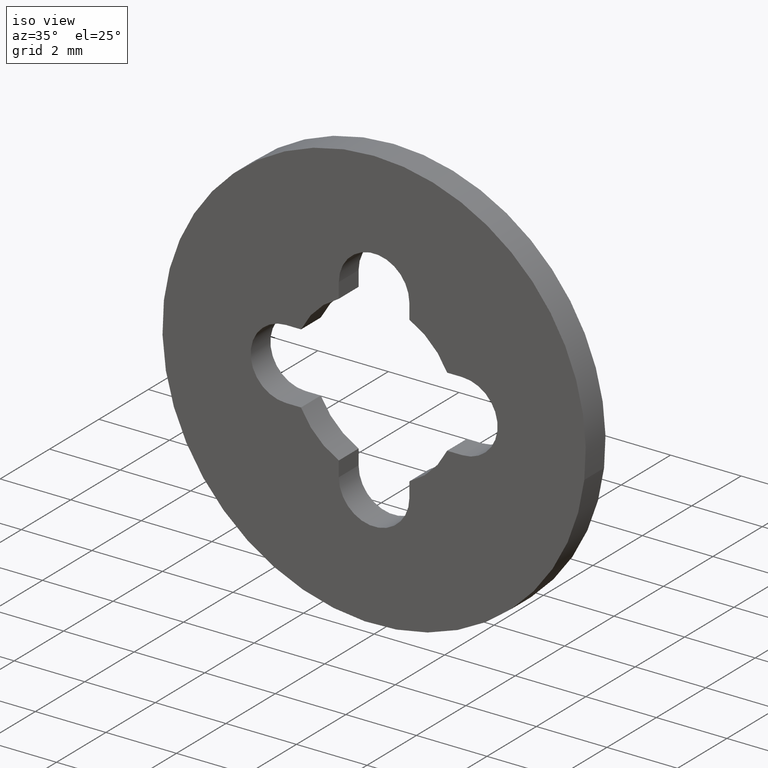
[diagram: clean part render]
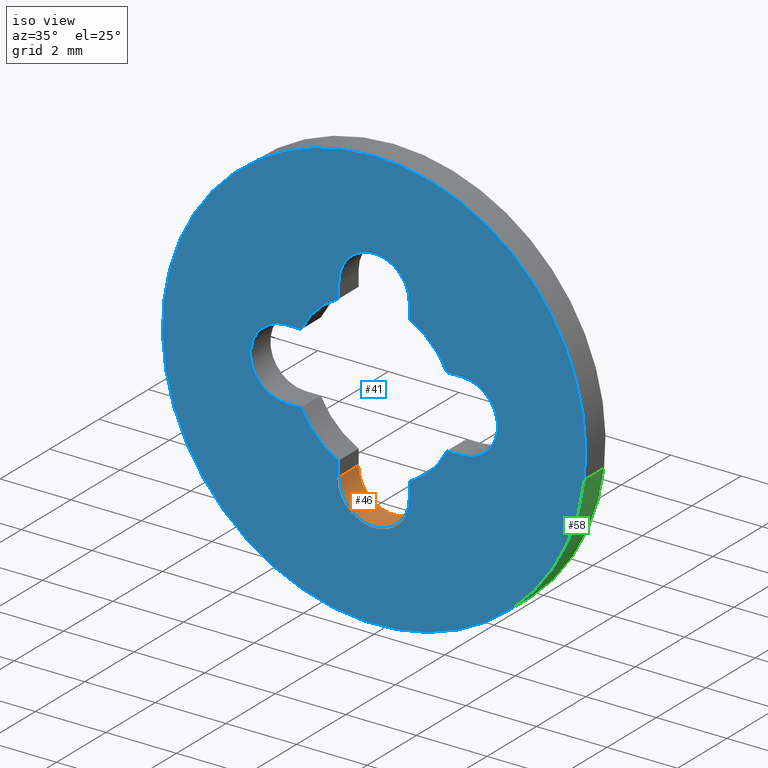
[diagram: same view with three faces highlighted in distinct colors, each labeled with its STEP entity id]
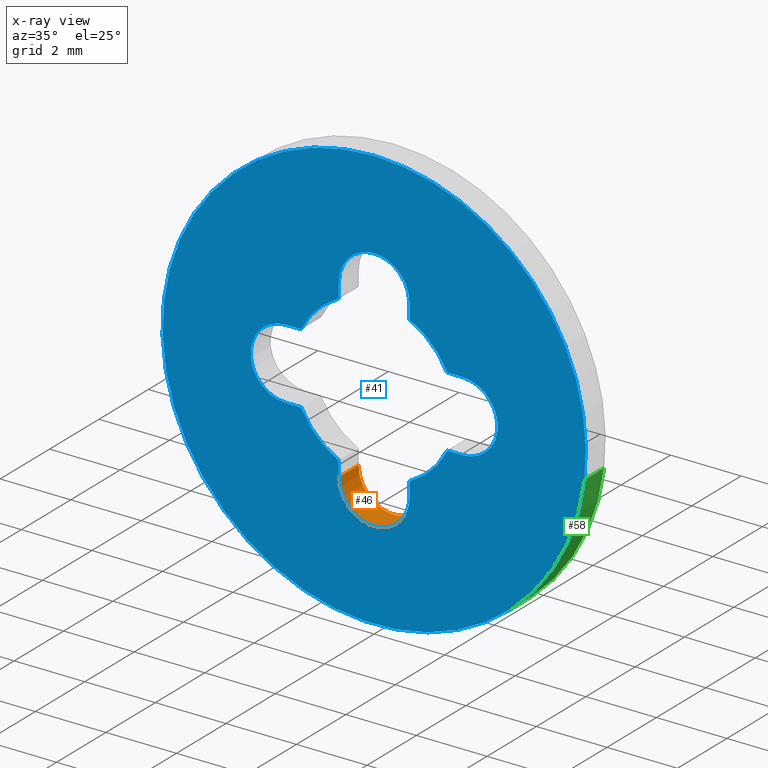
[diagram: x-ray of the same camera — body ghosted, the three highlighted faces saturated]
A machine part, iso view with three faces highlighted in distinct colors.
The next image is the same camera in x-ray (body ghosted, the three faces saturated) — at least one of them is partly hidden behind the body in this view.
Their STEP definitions:

[orange] entity #46 — the highlighted cylindrical surface (partial cylindrical patch) has radius 1 mm, axis along (0, -1, -0).
#46=ADVANCED_FACE('',(#123),#122,.F.);
#122=CYLINDRICAL_SURFACE('',#297,1.00000000000E+00);
#123=FACE_OUTER_BOUND('',#298,.T.);
#294=CARTESIAN_POINT('',(3.70797142990E-17,-2.05000000000E-02,-2.50000000000E+00));
#295=DIRECTION('',(0.00000000000E+00,-1.00000000000E+00,-0.00000000000E+00));
#296=DIRECTION('',(8.72653549838E-03,0.00000000000E+00,9.99961923064E-01));
#297=AXIS2_PLACEMENT_3D('',#294,#295,#296);
#298=EDGE_LOOP('',(#418,#419,#420,#421));
#418=ORIENTED_EDGE('',*,*,#503,.T.);
#419=ORIENTED_EDGE('',*,*,#518,.F.);
#420=ORIENTED_EDGE('',*,*,#491,.F.);
#421=ORIENTED_EDGE('',*,*,#519,.T.);
#491=EDGE_CURVE('',#631,#638,#639,.T.);
#503=EDGE_CURVE('',#722,#715,#723,.T.);
#518=EDGE_CURVE('',#638,#715,#822,.T.);
#519=EDGE_CURVE('',#631,#722,#828,.T.);
#631=VERTEX_POINT('',#972);
#638=VERTEX_POINT('',#976);
#639=CIRCLE('',#980,1.00000000000E+00);
#715=VERTEX_POINT('',#1027);
#722=VERTEX_POINT('',#1031);
#723=CIRCLE('',#1035,1.00000000000E+00);
#822=LINE('',#1092,#1093);
#828=LINE('',#1095,#1096);
#972=CARTESIAN_POINT('',(-1.00000000000E+00,8.00000000000E-01,-2.50000000000E+00));
#976=CARTESIAN_POINT('',(1.00000000000E+00,8.00000000000E-01,-2.49999982547E+00));
#977=CARTESIAN_POINT('',(-8.87137725789E-15,8.00000000000E-01,-2.50000000000E+00));
#978=DIRECTION('',(0.00000000000E+00,-1.00000000000E+00,-0.00000000000E+00));
#979=DIRECTION('',(-1.00000000000E+00,0.00000000000E+00,-9.20341277147E-15));
#980=AXIS2_PLACEMENT_3D('',#977,#978,#979);
#1027=CARTESIAN_POINT('',(1.00000000000E+00,0.00000000000E+00,-2.49999982547E+00));
#1031=CARTESIAN_POINT('',(-1.00000000000E+00,0.00000000000E+00,-2.50000000000E+00));
#1032=CARTESIAN_POINT('',(-8.87137725789E-15,0.00000000000E+00,-2.50000000000E+00));
#1033=DIRECTION('',(0.00000000000E+00,-1.00000000000E+00,-0.00000000000E+00));
#1034=DIRECTION('',(-1.00000000000E+00,0.00000000000E+00,-9.20341277147E-15));
#1035=AXIS2_PLACEMENT_3D('',#1032,#1033,#1034);
#1092=CARTESIAN_POINT('',(1.00000000000E+00,8.00000000000E-01,-2.49999982547E+00));
#1093=VECTOR('',#1094,8.00000000000E-01);
#1094=DIRECTION('',(0.00000000000E+00,-1.00000000000E+00,0.00000000000E+00));
#1095=CARTESIAN_POINT('',(-1.00000000000E+00,8.00000000000E-01,-2.50000000000E+00));
#1096=VECTOR('',#1097,8.00000000000E-01);
#1097=DIRECTION('',(0.00000000000E+00,-1.00000000000E+00,0.00000000000E+00));

[blue] entity #41 — the highlighted planar face has unit normal (-0, 1, 0).
#41=ADVANCED_FACE('',(#72,#73),#71,.F.);
#71=PLANE('',#271);
#72=FACE_OUTER_BOUND('',#272,.T.);
#73=FACE_BOUND('',#273,.T.);
#268=CARTESIAN_POINT('',(-1.24707658145E+01,0.00000000000E+00,7.80000000000E+00));
#269=DIRECTION('',(-0.00000000000E+00,1.00000000000E+00,0.00000000000E+00));
#270=DIRECTION('',(1.00000000000E+00,0.00000000000E+00,0.00000000000E+00));
#271=AXIS2_PLACEMENT_3D('',#268,#269,#270);
#272=EDGE_LOOP('',(#383,#384,#385));
#273=EDGE_LOOP('',(#386,#387,#388,#389,#390,#391,#392,#393,#394,#395,#396,#397,#398,#399,#400,#401));
#383=ORIENTED_EDGE('',*,*,#495,.T.);
#384=ORIENTED_EDGE('',*,*,#496,.T.);
#385=ORIENTED_EDGE('',*,*,#497,.T.);
#386=ORIENTED_EDGE('',*,*,#498,.F.);
#387=ORIENTED_EDGE('',*,*,#499,.F.);
#388=ORIENTED_EDGE('',*,*,#500,.F.);
#389=ORIENTED_EDGE('',*,*,#501,.F.);
#390=ORIENTED_EDGE('',*,*,#502,.F.);
#391=ORIENTED_EDGE('',*,*,#503,.F.);
#392=ORIENTED_EDGE('',*,*,#504,.F.);
#393=ORIENTED_EDGE('',*,*,#505,.F.);
#394=ORIENTED_EDGE('',*,*,#506,.F.);
#395=ORIENTED_EDGE('',*,*,#507,.F.);
#396=ORIENTED_EDGE('',*,*,#508,.F.);
#397=ORIENTED_EDGE('',*,*,#509,.F.);
#398=ORIENTED_EDGE('',*,*,#510,.F.);
#399=ORIENTED_EDGE('',*,*,#511,.F.);
#400=ORIENTED_EDGE('',*,*,#512,.F.);
#401=ORIENTED_EDGE('',*,*,#513,.F.);
#495=EDGE_CURVE('',#665,#666,#667,.T.);
#496=EDGE_CURVE('',#666,#673,#674,.T.);
#497=EDGE_CURVE('',#673,#665,#680,.T.);
#498=EDGE_CURVE('',#686,#687,#688,.T.);
#499=EDGE_CURVE('',#694,#686,#695,.T.);
#500=EDGE_CURVE('',#701,#694,#702,.T.);
#501=EDGE_CURVE('',#708,#701,#709,.T.);
#502=EDGE_CURVE('',#715,#708,#716,.T.);
#503=EDGE_CURVE('',#722,#715,#723,.T.);
#504=EDGE_CURVE('',#729,#722,#730,.T.);
#505=EDGE_CURVE('',#736,#729,#737,.T.);
#506=EDGE_CURVE('',#743,#736,#744,.T.);
#507=EDGE_CURVE('',#750,#743,#751,.T.);
#508=EDGE_CURVE('',#757,#750,#758,.T.);
#509=EDGE_CURVE('',#764,#757,#765,.T.);
#510=EDGE_CURVE('',#771,#764,#772,.T.);
#511=EDGE_CURVE('',#778,#771,#779,.T.);
#512=EDGE_CURVE('',#785,#778,#786,.T.);
#513=EDGE_CURVE('',#687,#785,#792,.T.);
#665=VERTEX_POINT('',#993);
#666=VERTEX_POINT('',#994);
#667=CIRCLE('',#998,6.00000000000E+00);
#673=VERTEX_POINT('',#999);
#674=CIRCLE('',#1003,6.00000000000E+00);
#680=CIRCLE('',#1007,6.00000000000E+00);
#686=VERTEX_POINT('',#1008);
#687=VERTEX_POINT('',#1009);
#688=LINE('',#1010,#1011);
#694=VERTEX_POINT('',#1013);
#695=CIRCLE('',#1017,1.00000000000E+00);
#701=VERTEX_POINT('',#1018);
#702=LINE('',#1019,#1020);
#708=VERTEX_POINT('',#1022);
#709=CIRCLE('',#1026,2.30000000000E+00);
#715=VERTEX_POINT('',#1027);
#716=LINE('',#1028,#1029);
#722=VERTEX_POINT('',#1031);
#723=CIRCLE('',#1035,1.00000000000E+00);
#729=VERTEX_POINT('',#1036);
#730=LINE('',#1037,#1038);
#736=VERTEX_POINT('',#1040);
#737=CIRCLE('',#1044,2.30000000000E+00);
#743=VERTEX_POINT('',#1045);
#744=LINE('',#1046,#1047);
#750=VERTEX_POINT('',#1049);
#751=CIRCLE('',#1053,1.00000000000E+00);
#757=VERTEX_POINT('',#1054);
#758=LINE('',#1055,#1056);
#764=VERTEX_POINT('',#1058);
#765=CIRCLE('',#1062,2.30000000000E+00);
#771=VERTEX_POINT('',#1063);
#772=LINE('',#1064,#1065);
#778=VERTEX_POINT('',#1067);
#779=CIRCLE('',#1071,1.00000000000E+00);
#785=VERTEX_POINT('',#1072);
#786=LINE('',#1073,#1074);
#792=CIRCLE('',#1079,2.30000000000E+00);
#993=CARTESIAN_POINT('',(1.60982338571E-14,8.00121012256E-13,6.00000000000E+00));
#994=CARTESIAN_POINT('',(-5.95793466626E+00,4.40724156108E-14,7.09235160270E-01));
#995=CARTESIAN_POINT('',(-8.28226376370E-13,6.59062363496E-14,-1.82343029564E-12));
#996=DIRECTION('',(1.82315375826E-14,-1.00000000000E+00,1.22369129318E-13));
#997=DIRECTION('',(1.40359945888E-13,1.22369129318E-13,1.00000000000E+00));
#998=AXIS2_PLACEMENT_3D('',#995,#996,#997);
#999=CARTESIAN_POINT('',(5.95805716504E+00,8.78683073894E-14,-7.08205350218E-01));
#1000=CARTESIAN_POINT('',(-8.28226376370E-13,6.59062363496E-14,-1.82343029564E-12));
#1001=DIRECTION('',(1.82315375826E-14,-1.00000000000E+00,1.22369129318E-13));
#1002=DIRECTION('',(1.40359945888E-13,1.22369129318E-13,1.00000000000E+00));
#1003=AXIS2_PLACEMENT_3D('',#1000,#1001,#1002);
#1004=CARTESIAN_POINT('',(-8.28226376370E-13,6.59062363496E-14,-1.82343029564E-12));
#1005=DIRECTION('',(1.82315375826E-14,-1.00000000000E+00,1.22369129318E-13));
#1006=DIRECTION('',(1.40359945888E-13,1.22369129318E-13,1.00000000000E+00));
#1007=AXIS2_PLACEMENT_3D('',#1004,#1005,#1006);
#1008=CARTESIAN_POINT('',(2.50000000000E+00,0.00000000000E+00,1.00000000000E+00));
#1009=CARTESIAN_POINT('',(2.07123151772E+00,0.00000000000E+00,1.00000000000E+00));
#1010=CARTESIAN_POINT('',(2.50000000000E+00,0.00000000000E+00,1.00000000000E+00));
#1011=VECTOR('',#1012,4.28768482279E-01);
#1012=DIRECTION('',(-1.00000000000E+00,0.00000000000E+00,0.00000000000E+00));
#1013=CARTESIAN_POINT('',(2.50000000000E+00,0.00000000000E+00,-1.00000000000E+00));
#1014=CARTESIAN_POINT('',(2.50000000000E+00,0.00000000000E+00,0.00000000000E+00));
#1015=DIRECTION('',(0.00000000000E+00,-1.00000000000E+00,-0.00000000000E+00));
#1016=DIRECTION('',(-1.22460635382E-16,0.00000000000E+00,-1.00000000000E+00));
#1017=AXIS2_PLACEMENT_3D('',#1014,#1015,#1016);
#1018=CARTESIAN_POINT('',(2.07123151772E+00,0.00000000000E+00,-1.00000000000E+00));
#1019=CARTESIAN_POINT('',(2.07123151772E+00,0.00000000000E+00,-1.00000000000E+00));
#1020=VECTOR('',#1021,4.28768482279E-01);
#1021=DIRECTION('',(1.00000000000E+00,0.00000000000E+00,0.00000000000E+00));
#1022=CARTESIAN_POINT('',(1.00000000000E+00,0.00000000000E+00,-2.07123151772E+00));
#1023=CARTESIAN_POINT('',(-4.21884749358E-15,0.00000000000E+00,4.44089209850E-15));
#1024=DIRECTION('',(0.00000000000E+00,-1.00000000000E+00,0.00000000000E+00));
#1025=DIRECTION('',(-4.34782608696E-01,-0.00000000000E+00,9.00535442487E-01));
#1026=AXIS2_PLACEMENT_3D('',#1023,#1024,#1025);
#1027=CARTESIAN_POINT('',(1.00000000000E+00,0.00000000000E+00,-2.49999982547E+00));
#1028=CARTESIAN_POINT('',(1.00000000000E+00,0.00000000000E+00,-2.49999982547E+00));
#1029=VECTOR('',#1030,4.28768307746E-01);
#1030=DIRECTION('',(9.32159121008E-15,0.00000000000E+00,1.00000000000E+00));
#1031=CARTESIAN_POINT('',(-1.00000000000E+00,0.00000000000E+00,-2.50000000000E+00));
#1032=CARTESIAN_POINT('',(-8.87137725789E-15,0.00000000000E+00,-2.50000000000E+00));
#1033=DIRECTION('',(0.00000000000E+00,-1.00000000000E+00,-0.00000000000E+00));
#1034=DIRECTION('',(-1.00000000000E+00,0.00000000000E+00,-9.20341277147E-15));
#1035=AXIS2_PLACEMENT_3D('',#1032,#1033,#1034);
#1036=CARTESIAN_POINT('',(-1.00000000000E+00,0.00000000000E+00,-2.07123151772E+00));
#1037=CARTESIAN_POINT('',(-1.00000000000E+00,0.00000000000E+00,-2.07123151772E+00));
#1038=VECTOR('',#1039,4.28768482279E-01);
#1039=DIRECTION('',(4.66079370784E-15,0.00000000000E+00,-1.00000000000E+00));
#1040=CARTESIAN_POINT('',(-2.07123151772E+00,0.00000000000E+00,-1.00000000000E+00));
#1041=CARTESIAN_POINT('',(3.33066907388E-15,0.00000000000E+00,2.88657986403E-15));
#1042=DIRECTION('',(0.00000000000E+00,-1.00000000000E+00,-0.00000000000E+00));
#1043=DIRECTION('',(9.00535442487E-01,-0.00000000000E+00,4.34782608696E-01));
#1044=AXIS2_PLACEMENT_3D('',#1041,#1042,#1043);
#1045=CARTESIAN_POINT('',(-2.50000000000E+00,0.00000000000E+00,-1.00000000000E+00));
#1046=CARTESIAN_POINT('',(-2.50000000000E+00,0.00000000000E+00,-1.00000000000E+00));
#1047=VECTOR('',#1048,4.28768482279E-01);
#1048=DIRECTION('',(1.00000000000E+00,0.00000000000E+00,0.00000000000E+00));
#1049=CARTESIAN_POINT('',(-2.50000000000E+00,0.00000000000E+00,1.00000000000E+00));
#1050=CARTESIAN_POINT('',(-2.50000000000E+00,0.00000000000E+00,0.00000000000E+00));
#1051=DIRECTION('',(0.00000000000E+00,-1.00000000000E+00,0.00000000000E+00));
#1052=DIRECTION('',(1.22460635382E-16,0.00000000000E+00,1.00000000000E+00));
#1053=AXIS2_PLACEMENT_3D('',#1050,#1051,#1052);
#1054=CARTESIAN_POINT('',(-2.07123151772E+00,0.00000000000E+00,1.00000000000E+00));
#1055=CARTESIAN_POINT('',(-2.07123151772E+00,0.00000000000E+00,1.00000000000E+00));
#1056=VECTOR('',#1057,4.28768482279E-01);
#1057=DIRECTION('',(-1.00000000000E+00,0.00000000000E+00,0.00000000000E+00));
#1058=CARTESIAN_POINT('',(-1.00000000000E+00,0.00000000000E+00,2.07123151772E+00));
#1059=CARTESIAN_POINT('',(-4.66293670343E-15,0.00000000000E+00,5.77315972805E-15));
#1060=DIRECTION('',(0.00000000000E+00,-1.00000000000E+00,0.00000000000E+00));
#1061=DIRECTION('',(4.34782608696E-01,-0.00000000000E+00,-9.00535442487E-01));
#1062=AXIS2_PLACEMENT_3D('',#1059,#1060,#1061);
#1063=CARTESIAN_POINT('',(-1.00000000000E+00,0.00000000000E+00,2.50000000000E+00));
#1064=CARTESIAN_POINT('',(-1.00000000000E+00,0.00000000000E+00,2.50000000000E+00));
#1065=VECTOR('',#1066,4.28768482279E-01);
#1066=DIRECTION('',(-4.19471433705E-14,0.00000000000E+00,-1.00000000000E+00));
#1067=CARTESIAN_POINT('',(1.00000000000E+00,0.00000000000E+00,2.50000000000E+00));
#1068=CARTESIAN_POINT('',(-5.49560397189E-15,0.00000000000E+00,2.50000000000E+00));
#1069=DIRECTION('',(0.00000000000E+00,-1.00000000000E+00,0.00000000000E+00));
#1070=DIRECTION('',(1.00000000000E+00,0.00000000000E+00,-5.45153115358E-15));
#1071=AXIS2_PLACEMENT_3D('',#1068,#1069,#1070);
#1072=CARTESIAN_POINT('',(1.00000000000E+00,0.00000000000E+00,2.07123151772E+00));
#1073=CARTESIAN_POINT('',(1.00000000000E+00,0.00000000000E+00,2.07123151772E+00));
#1074=VECTOR('',#1075,4.28768482279E-01);
#1075=DIRECTION('',(0.00000000000E+00,0.00000000000E+00,1.00000000000E+00));
#1076=CARTESIAN_POINT('',(-6.66133814775E-16,0.00000000000E+00,-4.44089209850E-16));
#1077=DIRECTION('',(0.00000000000E+00,-1.00000000000E+00,0.00000000000E+00));
#1078=DIRECTION('',(-9.00535442487E-01,-0.00000000000E+00,-4.34782608696E-01));
#1079=AXIS2_PLACEMENT_3D('',#1076,#1077,#1078);

[green] entity #58 — the highlighted cylindrical surface (partial cylindrical patch) has radius 6 mm, axis along (0, 1, 0).
#58=ADVANCED_FACE('',(#243),#242,.T.);
#242=CYLINDRICAL_SURFACE('',#357,6.00000000000E+00);
#243=FACE_OUTER_BOUND('',#358,.T.);
#354=CARTESIAN_POINT('',(-3.50417866765E-16,8.20000000000E-01,1.32193979310E-15));
#355=DIRECTION('',(2.06303218607E-17,1.00000000000E+00,1.73560714814E-16));
#356=DIRECTION('',(9.93009526364E-01,-4.00593428433E-32,-1.18034234657E-01));
#357=AXIS2_PLACEMENT_3D('',#354,#355,#356);
#358=EDGE_LOOP('',(#466,#467,#468,#469));
#466=ORIENTED_EDGE('',*,*,#477,.T.);
#467=ORIENTED_EDGE('',*,*,#530,.F.);
#468=ORIENTED_EDGE('',*,*,#496,.F.);
#469=ORIENTED_EDGE('',*,*,#531,.T.);
#477=EDGE_CURVE('',#540,#532,#541,.T.);
#496=EDGE_CURVE('',#666,#673,#674,.T.);
#530=EDGE_CURVE('',#673,#532,#894,.T.);
#531=EDGE_CURVE('',#666,#540,#900,.T.);
#532=VERTEX_POINT('',#906);
#540=VERTEX_POINT('',#912);
#541=CIRCLE('',#916,6.00000000000E+00);
#666=VERTEX_POINT('',#994);
#673=VERTEX_POINT('',#999);
#674=CIRCLE('',#1003,6.00000000000E+00);
#894=(BOUNDED_CURVE() B_SPLINE_CURVE(1,(#1128,#1129),.UNSPECIFIED.,.F.,.F.) B_SPLINE_CURVE_WITH_KNOTS((2,2),(8.33333730703E-02,9.16666640476E-01),.UNSPECIFIED.) CURVE() GEOMETRIC_REPRESENTATION_ITEM() RATIONAL_B_SPLINE_CURVE((1.00000000000E+00,1.00000000000E+00)) REPRESENTATION_ITEM('') );
#900=(BOUNDED_CURVE() B_SPLINE_CURVE(1,(#1130,#1131),.UNSPECIFIED.,.F.,.F.) B_SPLINE_CURVE_WITH_KNOTS((2,2),(8.33333333349E-02,9.16666666667E-01),.UNSPECIFIED.) CURVE() GEOMETRIC_REPRESENTATION_ITEM() RATIONAL_B_SPLINE_CURVE((7.50000000000E-01,7.50000000000E-01)) REPRESENTATION_ITEM('') );
#906=CARTESIAN_POINT('',(5.95805716504E+00,8.00000000000E-01,-7.08205350218E-01));
#912=CARTESIAN_POINT('',(-5.95793466626E+00,8.00000000000E-01,7.09235160270E-01));
#913=CARTESIAN_POINT('',(-8.09130540347E-13,8.00000000000E-01,-1.77813319624E-12));
#914=DIRECTION('',(6.53194715796E-17,-1.00000000000E+00,2.35995732097E-16));
#915=DIRECTION('',(1.29118937764E-13,2.35995732097E-16,1.00000000000E+00));
#916=AXIS2_PLACEMENT_3D('',#913,#914,#915);
#994=CARTESIAN_POINT('',(-5.95793466626E+00,4.40724156108E-14,7.09235160270E-01));
#999=CARTESIAN_POINT('',(5.95805716504E+00,8.78683073894E-14,-7.08205350218E-01));
#1000=CARTESIAN_POINT('',(-8.28226376370E-13,6.59062363496E-14,-1.82343029564E-12));
#1001=DIRECTION('',(1.82315375826E-14,-1.00000000000E+00,1.22369129318E-13));
#1002=DIRECTION('',(1.40359945888E-13,1.22369129318E-13,1.00000000000E+00));
#1003=AXIS2_PLACEMENT_3D('',#1000,#1001,#1002);
#1128=CARTESIAN_POINT('',(5.95805715818E+00,3.81460480425E-08,-7.08205407941E-01));
#1129=CARTESIAN_POINT('',(5.95805715818E+00,7.99999974857E-01,-7.08205407941E-01));
#1130=CARTESIAN_POINT('',(-5.95805715818E+00,5.90823686271E-14,7.08205407941E-01));
#1131=CARTESIAN_POINT('',(-5.95805715818E+00,8.00000000000E-01,7.08205407941E-01));